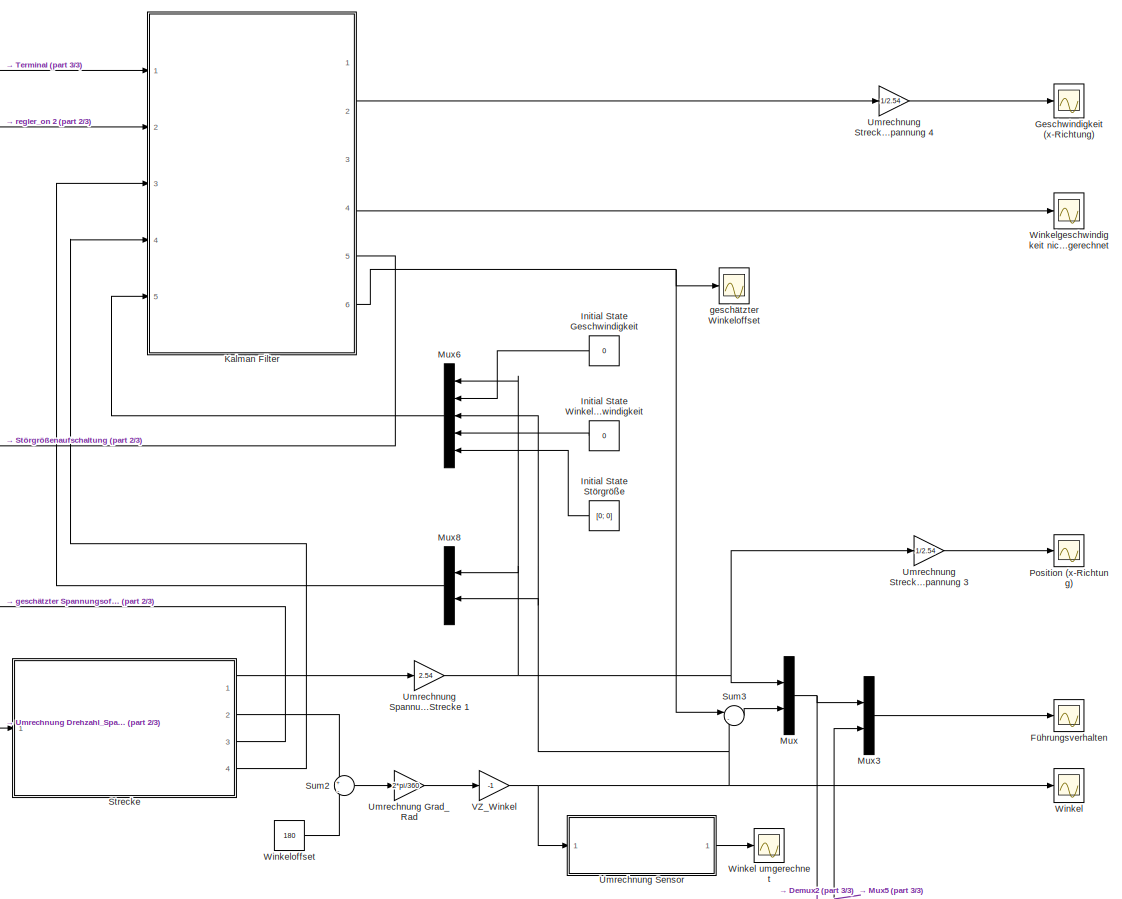
[diagram: root canvas - part 1/3, right side, full height]
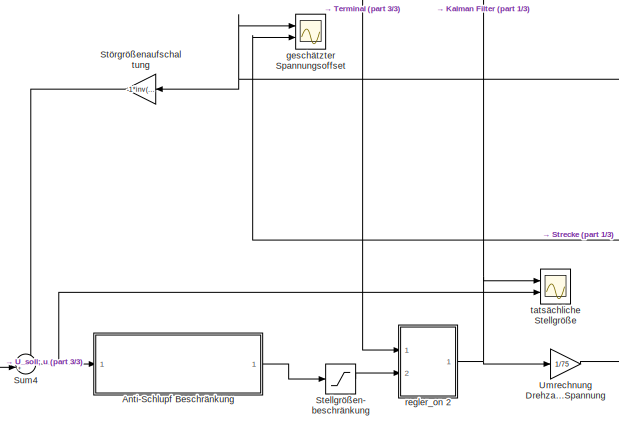
[diagram: root canvas - part 2/3, central region]
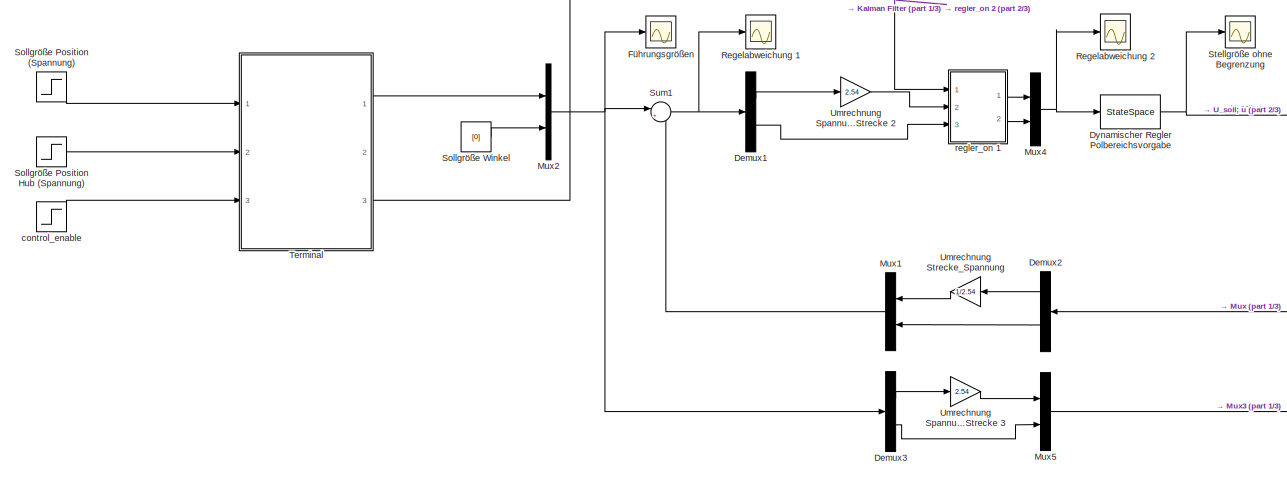
[diagram: root canvas - part 3/3, bottom left region]
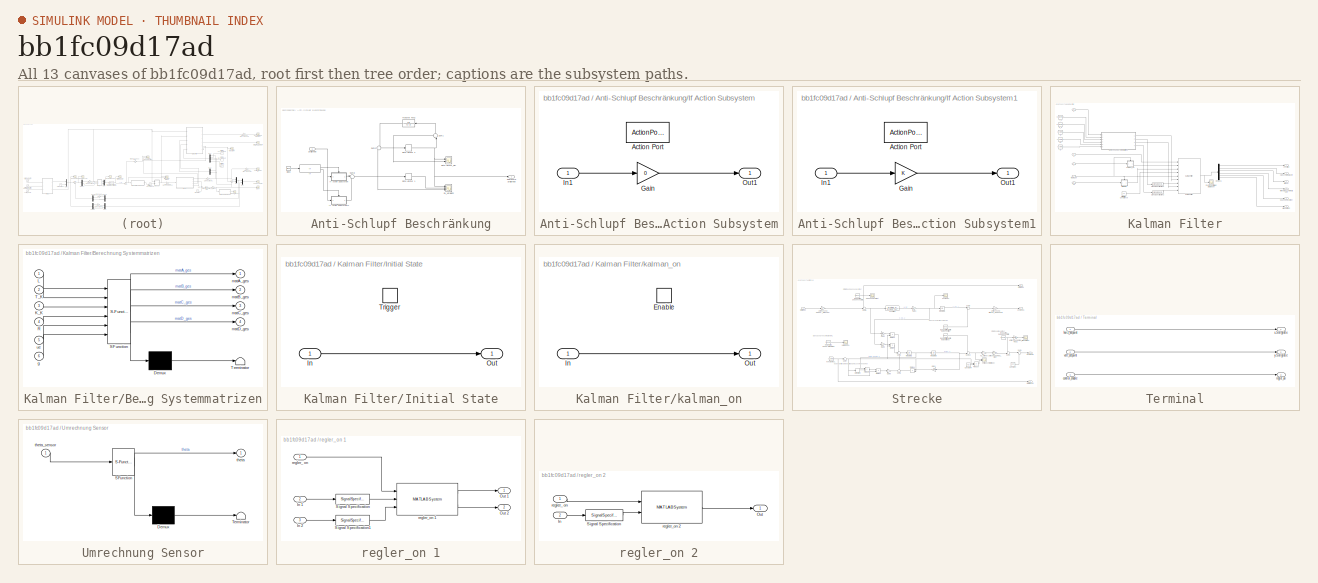
[diagram: thumbnail index - all 13 canvases of the model, root first then tree order]
MODEL slx_bb1fc09d17ad
KIND model
CONFIG AbsTol = auto
CONFIG EnableMultiTasking = off
CONFIG FixedStep = 1e-3
CONFIG MaxStep = auto
CONFIG MinStep = auto
CONFIG RelTol = 1e3
CONFIG SampleTimeConstraint = Unconstrained
CONFIG Solver = VariableStepAuto
CONFIG SolverName = VariableStepAuto
CONFIG StartTime = 0.0
CONFIG StopTime = 30.0
BLOCK [SubSystem] Anti-Schlupf Beschränkung
  Ports = [1, 1]
  RequestExecContextInheritance = off
  Variant = off
BLOCK [Clock] Anti-Schlupf Beschränkung/Clock
BLOCK [If] Anti-Schlupf Beschränkung/If
  IfExpression = u1 < 0.01
  Ports = [1, 2]
BLOCK [SubSystem] Anti-Schlupf Beschränkung/If Action Subsystem
  Ports = [1, 1, 0, 0, 0, 0, 0, 1]
  RequestExecContextInheritance = off
  TreatAsAtomicUnit = on
  Variant = off
BLOCK [ActionPort] Anti-Schlupf Beschränkung/If Action Subsystem/Action Port
  ActionType = then
BLOCK [Gain] Anti-Schlupf Beschränkung/If Action Subsystem/Gain
  Gain = 0
  OutDataTypeStr = Inherit: Inherit via internal rule
  ParamDataTypeStr = Inherit: Inherit via internal rule
  SaturateOnIntegerOverflow = off
BLOCK [Inport] Anti-Schlupf Beschränkung/If Action Subsystem/In1
  IconDisplay = Port number
BLOCK [Outport] Anti-Schlupf Beschränkung/If Action Subsystem/Out1
  IconDisplay = Port number
BLOCK [SubSystem] Anti-Schlupf Beschränkung/If Action Subsystem1
  Ports = [1, 1, 0, 0, 0, 0, 0, 1]
  RequestExecContextInheritance = off
  TreatAsAtomicUnit = on
  Variant = off
BLOCK [ActionPort] Anti-Schlupf Beschränkung/If Action Subsystem1/Action Port
  ActionType = else
BLOCK [Gain] Anti-Schlupf Beschränkung/If Action Subsystem1/Gain
  OutDataTypeStr = Inherit: Inherit via internal rule
  ParamDataTypeStr = Inherit: Inherit via internal rule
  SaturateOnIntegerOverflow = off
BLOCK [Inport] Anti-Schlupf Beschränkung/If Action Subsystem1/In1
  IconDisplay = Port number
BLOCK [Outport] Anti-Schlupf Beschränkung/If Action Subsystem1/Out1
  IconDisplay = Port number
BLOCK [Scope] Anti-Schlupf Beschränkung/RL_Vergleich
  NumInputPorts = 3
  Ports = [3]
  ScopeSpecificationString = Simulink.scopes.TimeScopeBlockCfg('CurrentConfiguration', extmgr.ConfigurationSet(extmgr.Configuration('Core','General UI',true),extmgr.Configuration('Core','Source UI',true),extmgr.Configuration('Sources','WiredSimulink',true,'DataLoggingVariableName','ScopeData2'),extmgr.Configuration('Visuals','Time Domain',true,'SerializedDisplays',{struct('MinYLimReal','-510.99726','MaxYLimReal','97.01303','Y...<+1490ch>
BLOCK [RateLimiter] Anti-Schlupf Beschränkung/Rate Limiter 1
  FallingSlewLimit = -9.57
  RisingSlewLimit = 9.57
  SampleTimeMode = inherited
BLOCK [RateLimiter] Anti-Schlupf Beschränkung/Rate Limiter 2
  FallingSlewLimit = -9.57
  RisingSlewLimit = 9.57
  SampleTimeMode = inherited
BLOCK [Scope] Anti-Schlupf Beschränkung/Rate Limiter_diff
  NumInputPorts = 2
  Ports = [2]
  ScopeSpecificationString = Simulink.scopes.TimeScopeBlockCfg('CurrentConfiguration', extmgr.ConfigurationSet(extmgr.Configuration('Core','General UI',true),extmgr.Configuration('Core','Source UI',true),extmgr.Configuration('Sources','WiredSimulink',true,'DataLoggingVariableName','ScopeData1'),extmgr.Configuration('Visuals','Time Domain',true,'SerializedDisplays',{struct('MinYLimReal','-24.99839','MaxYLimReal','29.44327','YL...<+1434ch>
BLOCK [Inport] Anti-Schlupf Beschränkung/Stellgröße
  IconDisplay = Port number
BLOCK [Sum] Anti-Schlupf Beschränkung/Sum1
  IconShape = round
  InputSameDT = off
  Inputs = -+|
  OutDataTypeStr = Inherit: Inherit via internal rule
  Ports = [2, 1]
  SaturateOnIntegerOverflow = off
BLOCK [Sum] Anti-Schlupf Beschränkung/Sum2
  IconShape = round
  InputSameDT = off
  Inputs = +|+
  OutDataTypeStr = Inherit: Inherit via internal rule
  Ports = [2, 1]
  SaturateOnIntegerOverflow = off
BLOCK [Sum] Anti-Schlupf Beschränkung/Sum8
  IconShape = round
  InputSameDT = off
  Inputs = |++
  OutDataTypeStr = Inherit: Inherit via internal rule
  Ports = [2, 1]
  SaturateOnIntegerOverflow = off
BLOCK [TransferFcn] Anti-Schlupf Beschränkung/Transfer Fcn2
  Denominator = [2 1]
  Numerator = [2]
BLOCK [Outport] Anti-Schlupf Beschränkung/begrenzte Stellgröße
  IconDisplay = Port number
BLOCK [Demux] Demux1
  DisplayOption = bar
  Outputs = 2
  Ports = [1, 2]
BLOCK [Demux] Demux2
  DisplayOption = bar
  Outputs = 2
  Ports = [1, 2]
BLOCK [Demux] Demux3
  DisplayOption = bar
  Outputs = 2
  Ports = [1, 2]
BLOCK [StateSpace] Dynamischer Regler Polbereichsvorgabe
  A = A_D
  B = -B_D
  C = -C_D
  D = D_D
  Ports = [1, 1]
  X0 = 0
BLOCK [Scope] Führungsgrößen
  NumInputPorts = 1
  Ports = [1]
  ScopeSpecificationString = Simulink.scopes.TimeScopeBlockCfg('CurrentConfiguration', extmgr.ConfigurationSet(extmgr.Configuration('Core','General UI',true),extmgr.Configuration('Core','Source UI',true),extmgr.Configuration('Sources','WiredSimulink',true,'DataLoggingVariableName','ScopeData7'),extmgr.Configuration('Visuals','Time Domain',true,'SerializedDisplays',{struct('MinYLimReal','-0.125','MaxYLimReal','1.125','YLabelRe...<+1407ch>
BLOCK [Scope] Führungsverhalten
  NumInputPorts = 1
  Ports = [1]
  ScopeSpecificationString = Simulink.scopes.TimeScopeBlockCfg('CurrentConfiguration', extmgr.ConfigurationSet(extmgr.Configuration('Core','General UI',true),extmgr.Configuration('Core','Source UI',true),extmgr.Configuration('Sources','WiredSimulink',true,'DataLoggingVariableName','ScopeData1'),extmgr.Configuration('Visuals','Time Domain',true,'SerializedDisplays',{struct('MinYLimReal','-0.63895','MaxYLimReal','4.4975','YLabe...<+1507ch>
BLOCK [Scope] Geschwindigkeit (x-Richtung)
  NumInputPorts = 1
  Ports = [1]
  ScopeSpecificationString = Simulink.scopes.TimeScopeBlockCfg('CurrentConfiguration', extmgr.ConfigurationSet(extmgr.Configuration('Core','General UI',true),extmgr.Configuration('Core','Source UI',true),extmgr.Configuration('Sources','WiredSimulink',true,'DataLoggingVariableName','ScopeData1'),extmgr.Configuration('Visuals','Time Domain',true,'SerializedDisplays',{struct('MinYLimReal','-0.29677','MaxYLimReal','1.17208','YLab...<+1461ch>
BLOCK [Constant] Initial State Geschwindigkeit
  Value = 0
  VectorParams1D = off
BLOCK [Constant] Initial State Störgröße
  Value = [0; 0]
  VectorParams1D = off
BLOCK [Constant] Initial State Winkelgeschwindigkeit
  Value = 0
  VectorParams1D = off
BLOCK [SubSystem] Kalman Filter
  Ports = [5, 6]
  RequestExecContextInheritance = off
  Variant = off
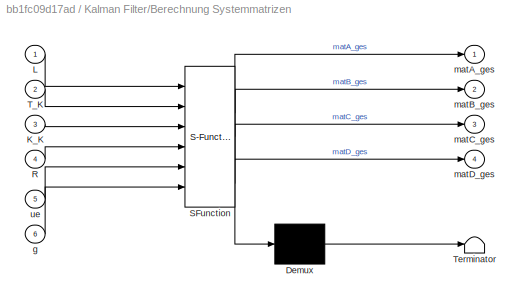
BLOCK [SubSystem] Kalman Filter/Berechnung Systemmatrizen
  ErrorFcn = Stateflow.Translate.translate
  PermitHierarchicalResolution = ExplicitOnly
  Ports = [6, 4]
  RequestExecContextInheritance = off
  SFBlockType = MATLAB Function
  TreatAsAtomicUnit = on
  Variant = off
BLOCK [Demux] Kalman Filter/Berechnung Systemmatrizen/ Demux 
  Outputs = 1
  Ports = [1, 1]
BLOCK [S-Function] Kalman Filter/Berechnung Systemmatrizen/ SFunction 
  EnableBusSupport = on
  FunctionName = sf_sfun
  PortCounts = [6 5]
  Ports = [6, 5]
  SFcnIsStateOwnerBlock = off
  SFunctionDeploymentMode = off
  Tag = Stateflow S-Function sim_polbereichsvorgabe 3
BLOCK [Terminator] Kalman Filter/Berechnung Systemmatrizen/ Terminator 
BLOCK [Inport] Kalman Filter/Berechnung Systemmatrizen/K_K
  IconDisplay = Port number
  Port = 3
BLOCK [Inport] Kalman Filter/Berechnung Systemmatrizen/L
  IconDisplay = Port number
BLOCK [Inport] Kalman Filter/Berechnung Systemmatrizen/R
  IconDisplay = Port number
  Port = 4
BLOCK [Inport] Kalman Filter/Berechnung Systemmatrizen/T_K
  IconDisplay = Port number
  Port = 2
BLOCK [Inport] Kalman Filter/Berechnung Systemmatrizen/g
  IconDisplay = Port number
  Port = 6
BLOCK [Outport] Kalman Filter/Berechnung Systemmatrizen/matA_ges
  IconDisplay = Port number
BLOCK [Outport] Kalman Filter/Berechnung Systemmatrizen/matB_ges
  IconDisplay = Port number
  Port = 2
BLOCK [Outport] Kalman Filter/Berechnung Systemmatrizen/matC_ges
  IconDisplay = Port number
  Port = 3
BLOCK [Outport] Kalman Filter/Berechnung Systemmatrizen/matD_ges
  IconDisplay = Port number
  Port = 4
BLOCK [Inport] Kalman Filter/Berechnung Systemmatrizen/ue
  IconDisplay = Port number
  Port = 5
BLOCK [Demux] Kalman Filter/Demux6
  DisplayOption = bar
  Outputs = 6
  Ports = [1, 6]
BLOCK [Constant] Kalman Filter/Initial Error Covariance
  Value = 10
BLOCK [SubSystem] Kalman Filter/Initial State
  Ports = [1, 1, 0, 1]
  RequestExecContextInheritance = off
  TreatAsAtomicUnit = on
  Variant = off
BLOCK [Inport] Kalman Filter/Initial State/In
  IconDisplay = Port number
BLOCK [Outport] Kalman Filter/Initial State/Out
  IconDisplay = Port number
BLOCK [TriggerPort] Kalman Filter/Initial State/Trigger
  Ports = []
  StatesWhenEnabling = held
  VariantControl = Variant
BLOCK [Constant] Kalman Filter/K_K
  Value = system.K_K
BLOCK [Reference] Kalman Filter/Kalman Filter  REF=ctrlSharedLib/Kalman Filter
  Ports = [9, 1]
  SourceBlock = ctrlSharedLib/Kalman Filter
  SourceType = ctrlKalmanFilter
BLOCK [Inport] Kalman Filter/L
  IconDisplay = Port number
  Port = 4
BLOCK [Constant] Kalman Filter/R
  Value = system.R
BLOCK [SignalSpecification] Kalman Filter/Signal Specification 1
  Dimensions = [6 1]
BLOCK [SignalSpecification] Kalman Filter/Signal Specification 2
  Dimensions = [2 1]
BLOCK [Outport] Kalman Filter/Spannungsoffset
  IconDisplay = Port number
  Port = 5
BLOCK [Constant] Kalman Filter/T_K
  Value = system.T_K
BLOCK [Outport] Kalman Filter/Winkel
  IconDisplay = Port number
  Port = 3
BLOCK [Outport] Kalman Filter/Winkelgeschwindigkeit
  IconDisplay = Port number
  Port = 4
BLOCK [Outport] Kalman Filter/Winkeloffset
  IconDisplay = Port number
  Port = 6
BLOCK [Scope] Kalman Filter/Zustände mit allen Störgrößen
  NumInputPorts = 1
  Ports = [1]
  ScopeSpecificationString = Simulink.scopes.TimeScopeBlockCfg('CurrentConfiguration', extmgr.ConfigurationSet(extmgr.Configuration('Core','General UI',true),extmgr.Configuration('Core','Source UI',true),extmgr.Configuration('Sources','WiredSimulink',true,'DataLoggingVariableName','ScopeData1'),extmgr.Configuration('Visuals','Time Domain',true,'SerializedDisplays',{struct('MinYLimReal','-0.84313','MaxYLimReal','3.02828','YLab...<+1537ch>
BLOCK [Constant] Kalman Filter/g
  Value = system.g
BLOCK [SubSystem] Kalman Filter/kalman_on
  Ports = [1, 1, 1]
  RequestExecContextInheritance = off
  TreatAsAtomicUnit = on
  Variant = off
BLOCK [EnablePort] Kalman Filter/kalman_on/Enable
  Ports = []
BLOCK [Inport] Kalman Filter/kalman_on/In
  IconDisplay = Port number
BLOCK [Outport] Kalman Filter/kalman_on/Out
  IconDisplay = Port number
BLOCK [Inport] Kalman Filter/regler_an
  IconDisplay = Port number
BLOCK [Inport] Kalman Filter/u
  IconDisplay = Port number
  Port = 2
BLOCK [Constant] Kalman Filter/ue
  Value = system.ue
BLOCK [Outport] Kalman Filter/x-Geschwindigkeit
  IconDisplay = Port number
  Port = 2
BLOCK [Outport] Kalman Filter/x-Position
  IconDisplay = Port number
BLOCK [Inport] Kalman Filter/x0
  IconDisplay = Port number
  Port = 5
BLOCK [Inport] Kalman Filter/y
  IconDisplay = Port number
  Port = 3
BLOCK [Mux] Mux
  DisplayOption = bar
  Inputs = 2
  Ports = [2, 1]
BLOCK [Mux] Mux1
  DisplayOption = bar
  Inputs = 2
  Ports = [2, 1]
BLOCK [Mux] Mux2
  DisplayOption = bar
  Inputs = 2
  Ports = [2, 1]
BLOCK [Mux] Mux3
  DisplayOption = bar
  Inputs = 2
  Ports = [2, 1]
BLOCK [Mux] Mux4
  DisplayOption = bar
  Inputs = 2
  Ports = [2, 1]
BLOCK [Mux] Mux5
  DisplayOption = bar
  Inputs = 2
  Ports = [2, 1]
BLOCK [Mux] Mux6
  DisplayOption = bar
  Inputs = 5
  Ports = [5, 1]
BLOCK [Mux] Mux8
  DisplayOption = bar
  Inputs = 2
  Ports = [2, 1]
BLOCK [Scope] Position (x-Richtung)
  NumInputPorts = 1
  Ports = [1]
  ScopeSpecificationString = Simulink.scopes.TimeScopeBlockCfg('CurrentConfiguration', extmgr.ConfigurationSet(extmgr.Configuration('Core','General UI',true),extmgr.Configuration('Core','Source UI',true),extmgr.Configuration('Sources','WiredSimulink',true,'DataLoggingVariableName','ScopeData3'),extmgr.Configuration('Visuals','Time Domain',true,'SerializedDisplays',{struct('MinYLimReal','-0.13698','MaxYLimReal','1.17403','YLab...<+1461ch>
BLOCK [Scope] Regelabweichung 1
  NumInputPorts = 1
  Ports = [1]
  ScopeSpecificationString = Simulink.scopes.TimeScopeBlockCfg('CurrentConfiguration', extmgr.ConfigurationSet(extmgr.Configuration('Core','General UI',true),extmgr.Configuration('Core','Source UI',true),extmgr.Configuration('Sources','WiredSimulink',true,'DataLoggingVariableName','ScopeData3'),extmgr.Configuration('Visuals','Time Domain',true,'SerializedDisplays',{struct('MinYLimReal','-0.09748','MaxYLimReal','0.56989','YLab...<+1435ch>
BLOCK [Scope] Regelabweichung 2
  NumInputPorts = 1
  Ports = [1]
  ScopeSpecificationString = Simulink.scopes.TimeScopeBlockCfg('CurrentConfiguration', extmgr.ConfigurationSet(extmgr.Configuration('Core','General UI',true),extmgr.Configuration('Core','Source UI',true),extmgr.Configuration('Sources','WiredSimulink',true,'DataLoggingVariableName','ScopeData6'),extmgr.Configuration('Visuals','Time Domain',true,'SerializedDisplays',{struct('MinYLimReal','-0.49466','MaxYLimReal','2.89378','YLab...<+1449ch>
BLOCK [Step] Sollgröße Position (Spannung)
  SampleTime = 0
  Time = 2
BLOCK [Step] Sollgröße Position Hub (Spannung)
  After = 0.5
  SampleTime = 0
  Time = 2
BLOCK [Constant] Sollgröße Winkel
  Value = [0]
  VectorParams1D = off
BLOCK [Scope] Stellgröße ohne Begrenzung
  NumInputPorts = 1
  Ports = [1]
  ScopeSpecificationString = Simulink.scopes.TimeScopeBlockCfg('CurrentConfiguration', extmgr.ConfigurationSet(extmgr.Configuration('Core','General UI',true),extmgr.Configuration('Core','Source UI',true),extmgr.Configuration('Sources','WiredSimulink',true,'DataLoggingVariableName','ScopeData5'),extmgr.Configuration('Visuals','Time Domain',true,'SerializedDisplays',{struct('MinYLimReal','-310.10219','MaxYLimReal','60.85818','Y...<+1453ch>
BLOCK [Saturate] Stellgrößen- beschränkung
  InputPortMap = u0
  LowerLimit = -75
  Ports = [1, 1]
  UpperLimit = 75
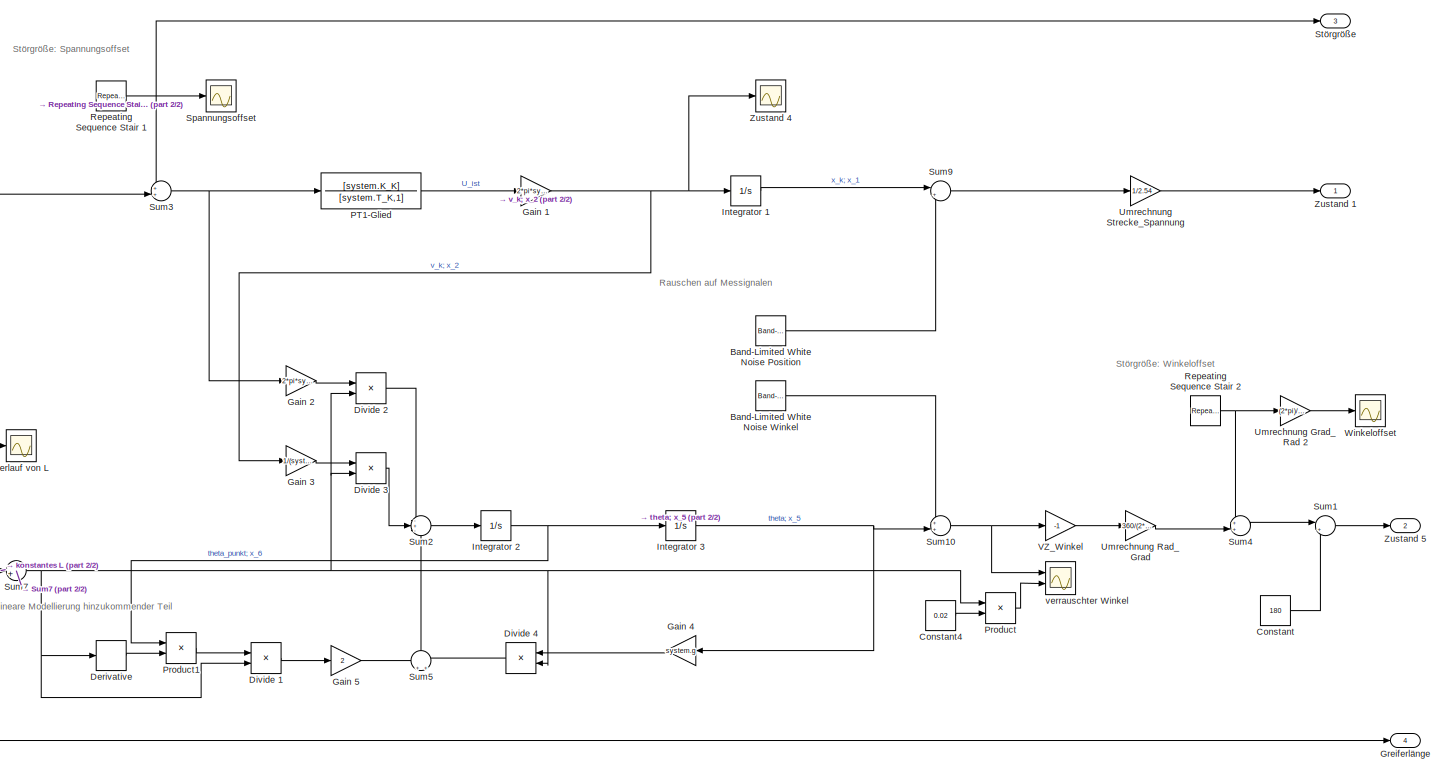
[diagram: Strecke - part 1/2, most of the canvas]
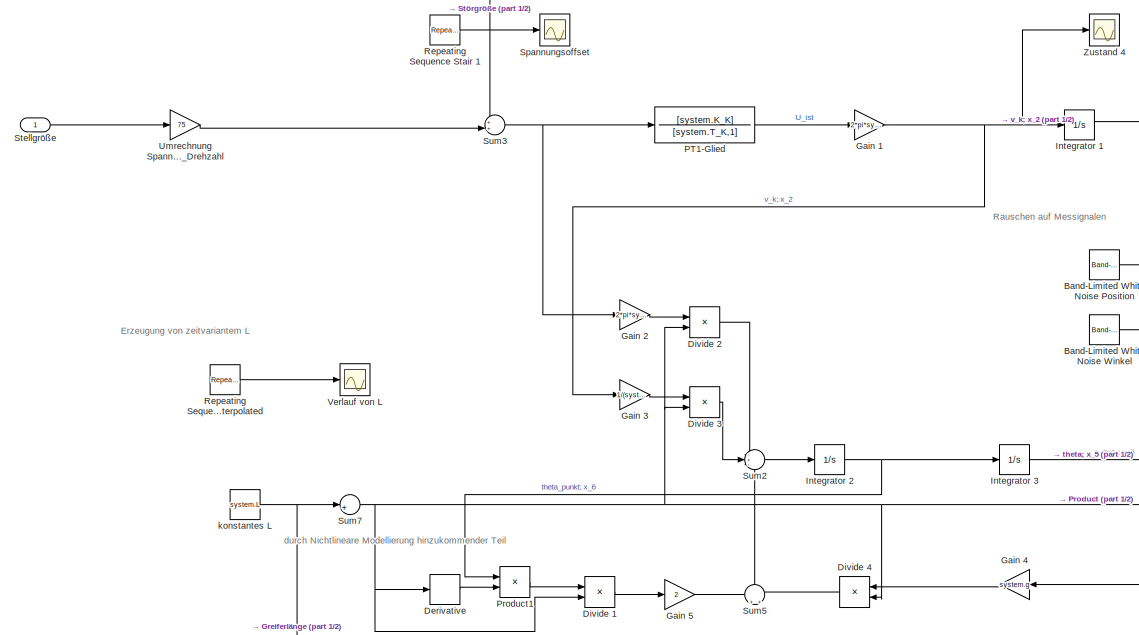
[diagram: Strecke - part 2/2, left side, full height]
BLOCK [SubSystem] Strecke
  Ports = [1, 4]
  RequestExecContextInheritance = off
  Variant = off
BLOCK [Reference] Strecke/Band-Limited White Noise Position  REF=simulink/Sources/Band-Limited
White Noise
  Ports = [0, 1]
  SourceBlock = simulink/Sources/Band-Limited\nWhite Noise
  SourceType = Band-Limited White Noise.
BLOCK [Reference] Strecke/Band-Limited White Noise Winkel  REF=simulink/Sources/Band-Limited
White Noise
  Ports = [0, 1]
  SourceBlock = simulink/Sources/Band-Limited\nWhite Noise
  SourceType = Band-Limited White Noise.
BLOCK [Constant] Strecke/Constant
  Value = 180
BLOCK [Constant] Strecke/Constant4
  Value = 0.02
BLOCK [Derivative] Strecke/Derivative
BLOCK [Product] Strecke/Divide 1
  InputSameDT = off
  Inputs = */
  OutDataTypeStr = Inherit: Inherit via internal rule
  Ports = [2, 1]
  RndMeth = Floor
  SaturateOnIntegerOverflow = off
BLOCK [Product] Strecke/Divide 2
  InputSameDT = off
  Inputs = */
  OutDataTypeStr = Inherit: Inherit via internal rule
  Ports = [2, 1]
  RndMeth = Floor
  SaturateOnIntegerOverflow = off
BLOCK [Product] Strecke/Divide 3
  InputSameDT = off
  Inputs = */
  OutDataTypeStr = Inherit: Inherit via internal rule
  Ports = [2, 1]
  RndMeth = Floor
  SaturateOnIntegerOverflow = off
BLOCK [Product] Strecke/Divide 4
  InputSameDT = off
  Inputs = */
  OutDataTypeStr = Inherit: Inherit via internal rule
  Ports = [2, 1]
  RndMeth = Floor
  SaturateOnIntegerOverflow = off
BLOCK [Gain] Strecke/Gain 1
  Gain = 2*pi*system.R/system.ue
  OutDataTypeStr = Inherit: Inherit via internal rule
  ParamDataTypeStr = Inherit: Inherit via internal rule
  SaturateOnIntegerOverflow = off
BLOCK [Gain] Strecke/Gain 2
  Gain = 2*pi*system.R*system.K_K/(system.ue*system.T_K)
  OutDataTypeStr = Inherit: Inherit via internal rule
  ParamDataTypeStr = Inherit: Inherit via internal rule
  SaturateOnIntegerOverflow = off
BLOCK [Gain] Strecke/Gain 3
  Gain = 1/(system.T_K)
  OutDataTypeStr = Inherit: Inherit via internal rule
  ParamDataTypeStr = Inherit: Inherit via internal rule
  SaturateOnIntegerOverflow = off
BLOCK [Gain] Strecke/Gain 4
  Gain = system.g
  OutDataTypeStr = Inherit: Inherit via internal rule
  ParamDataTypeStr = Inherit: Inherit via internal rule
  SaturateOnIntegerOverflow = off
BLOCK [Gain] Strecke/Gain 5
  Gain = 2
  OutDataTypeStr = Inherit: Inherit via internal rule
  ParamDataTypeStr = Inherit: Inherit via internal rule
  SaturateOnIntegerOverflow = off
BLOCK [Outport] Strecke/Greiferlänge
  IconDisplay = Port number
  Port = 4
BLOCK [Integrator] Strecke/Integrator 1
  Ports = [1, 1]
BLOCK [Integrator] Strecke/Integrator 2
  Ports = [1, 1]
BLOCK [Integrator] Strecke/Integrator 3
  Ports = [1, 1]
BLOCK [TransferFcn] Strecke/PT1-Glied
  Denominator = [system.T_K,1]
  Numerator = [system.K_K]
BLOCK [Product] Strecke/Product
  InputSameDT = off
  OutDataTypeStr = Inherit: Inherit via internal rule
  Ports = [2, 1]
  RndMeth = Floor
  SaturateOnIntegerOverflow = off
BLOCK [Product] Strecke/Product1
  InputSameDT = off
  OutDataTypeStr = Inherit: Inherit via internal rule
  Ports = [2, 1]
  RndMeth = Floor
  SaturateOnIntegerOverflow = off
BLOCK [Reference] Strecke/Repeating Sequence Interpolated  REF=simulink/Sources/Repeating
Sequence
Interpolated
  Ports = [0, 1]
  SourceBlock = simulink/Sources/Repeating\nSequence\nInterpolated
  SourceType = Repeating Sequence Interpolated
BLOCK [Reference] Strecke/Repeating Sequence Stair 1  REF=simulink/Sources/Repeating
Sequence
Stair
  Ports = [0, 1]
  SourceBlock = simulink/Sources/Repeating\nSequence\nStair
  SourceType = Repeating Sequence Stair
BLOCK [Reference] Strecke/Repeating Sequence Stair 2  REF=simulink/Sources/Repeating
Sequence
Stair
  Ports = [0, 1]
  SourceBlock = simulink/Sources/Repeating\nSequence\nStair
  SourceType = Repeating Sequence Stair
BLOCK [Scope] Strecke/Spannungsoffset
  NumInputPorts = 1
  Ports = [1]
  ScopeSpecificationString = Simulink.scopes.TimeScopeBlockCfg('CurrentConfiguration', extmgr.ConfigurationSet(extmgr.Configuration('Core','General UI',true),extmgr.Configuration('Core','Source UI',true),extmgr.Configuration('Sources','WiredSimulink',true,'DataLoggingVariableName','ScopeData1','DataLoggingLimitDataPoints',true,'DataLoggingSaveFormat','Array','DataLoggingDecimation','1','DataLoggingDecimateData',true),extmgr.C...<+1482ch>
BLOCK [Inport] Strecke/Stellgröße
  IconDisplay = Port number
BLOCK [Outport] Strecke/Störgröße
  IconDisplay = Port number
  Port = 3
BLOCK [Sum] Strecke/Sum1
  IconShape = round
  InputSameDT = off
  Inputs = |++
  OutDataTypeStr = Inherit: Inherit via internal rule
  Ports = [2, 1]
  SaturateOnIntegerOverflow = off
BLOCK [Sum] Strecke/Sum10
  IconShape = round
  InputSameDT = off
  Inputs = ++|
  OutDataTypeStr = Inherit: Inherit via internal rule
  Ports = [2, 1]
  SaturateOnIntegerOverflow = off
BLOCK [Sum] Strecke/Sum2
  IconShape = round
  InputSameDT = off
  Inputs = -+-
  OutDataTypeStr = Inherit: Inherit via internal rule
  Ports = [3, 1]
  SaturateOnIntegerOverflow = off
BLOCK [Sum] Strecke/Sum3
  IconShape = round
  InputSameDT = off
  Inputs = ++|
  OutDataTypeStr = Inherit: Inherit via internal rule
  Ports = [2, 1]
  SaturateOnIntegerOverflow = off
BLOCK [Sum] Strecke/Sum4
  IconShape = round
  InputSameDT = off
  Inputs = ++|
  OutDataTypeStr = Inherit: Inherit via internal rule
  Ports = [2, 1]
  SaturateOnIntegerOverflow = off
BLOCK [Sum] Strecke/Sum5
  IconShape = round
  InputSameDT = off
  Inputs = +|+
  OutDataTypeStr = Inherit: Inherit via internal rule
  Ports = [2, 1]
  SaturateOnIntegerOverflow = off
BLOCK [Sum] Strecke/Sum7
  IconShape = round
  InputSameDT = off
  Inputs = |+|
  OutDataTypeStr = Inherit: Inherit via internal rule
  Ports = [1, 1]
  SaturateOnIntegerOverflow = off
BLOCK [Sum] Strecke/Sum9
  IconShape = round
  InputSameDT = off
  Inputs = |++
  OutDataTypeStr = Inherit: Inherit via internal rule
  Ports = [2, 1]
  SaturateOnIntegerOverflow = off
BLOCK [Gain] Strecke/Umrechnung Grad_Rad 2
  Gain = (2*pi)/360
  OutDataTypeStr = Inherit: Inherit via internal rule
  ParamDataTypeStr = Inherit: Inherit via internal rule
  SaturateOnIntegerOverflow = off
BLOCK [Gain] Strecke/Umrechnung Rad_Grad
  Gain = 360/(2*pi)
  OutDataTypeStr = Inherit: Inherit via internal rule
  ParamDataTypeStr = Inherit: Inherit via internal rule
  SaturateOnIntegerOverflow = off
BLOCK [Gain] Strecke/Umrechnung Spannung_Drehzahl
  Gain = 75
  OutDataTypeStr = Inherit: Inherit via internal rule
  ParamDataTypeStr = Inherit: Inherit via internal rule
  SaturateOnIntegerOverflow = off
BLOCK [Gain] Strecke/Umrechnung Strecke_Spannung
  Gain = 1/2.54
  OutDataTypeStr = Inherit: Inherit via internal rule
  ParamDataTypeStr = Inherit: Inherit via internal rule
  SaturateOnIntegerOverflow = off
BLOCK [Gain] Strecke/VZ_Winkel
  Gain = -1
  OutDataTypeStr = Inherit: Inherit via internal rule
  ParamDataTypeStr = Inherit: Inherit via internal rule
  SaturateOnIntegerOverflow = off
BLOCK [Scope] Strecke/Verlauf von L
  NumInputPorts = 1
  Ports = [1]
  ScopeSpecificationString = Simulink.scopes.TimeScopeBlockCfg('CurrentConfiguration', extmgr.ConfigurationSet(extmgr.Configuration('Core','General UI',true),extmgr.Configuration('Core','Source UI',true),extmgr.Configuration('Sources','WiredSimulink',true,'DataLoggingVariableName','ScopeData2','DataLoggingSaveFormat','Array','DataLoggingDecimation','1','DataLoggingDecimateData',true),extmgr.Configuration('Visuals','Time Domai...<+1525ch>
BLOCK [Scope] Strecke/Winkeloffset
  NumInputPorts = 1
  Ports = [1]
  ScopeSpecificationString = Simulink.scopes.TimeScopeBlockCfg('CurrentConfiguration', extmgr.ConfigurationSet(extmgr.Configuration('Core','General UI',true),extmgr.Configuration('Core','Source UI',true),extmgr.Configuration('Sources','WiredSimulink',true,'DataLoggingVariableName','ScopeData1'),extmgr.Configuration('Visuals','Time Domain',true,'SerializedDisplays',{struct('MinYLimReal','-0.00873','MaxYLimReal','0.07854','YLab...<+1416ch>
BLOCK [Outport] Strecke/Zustand 1
  IconDisplay = Port number
BLOCK [Scope] Strecke/Zustand 4
  NumInputPorts = 1
  Ports = [1]
  ScopeSpecificationString = Simulink.scopes.TimeScopeBlockCfg('CurrentConfiguration', extmgr.ConfigurationSet(extmgr.Configuration('Core','General UI',true),extmgr.Configuration('Core','Source UI',true),extmgr.Configuration('Sources','WiredSimulink',true,'DataLoggingVariableName','ScopeData4','DataLoggingSaveFormat','Array','DataLoggingDecimation','1','DataLoggingDecimateData',true),extmgr.Configuration('Visuals','Time Domai...<+1506ch>
BLOCK [Outport] Strecke/Zustand 5
  IconDisplay = Port number
  Port = 2
BLOCK [Constant] Strecke/konstantes L
  Value = system.L
BLOCK [Scope] Strecke/verrauschter Winkel
  NumInputPorts = 2
  Ports = [2]
  ScopeSpecificationString = Simulink.scopes.TimeScopeBlockCfg('CurrentConfiguration', extmgr.ConfigurationSet(extmgr.Configuration('Core','General UI',true),extmgr.Configuration('Core','Source UI',true),extmgr.Configuration('Sources','WiredSimulink',true,'DataLoggingVariableName','ScopeData5','DataLoggingLimitDataPoints',true),extmgr.Configuration('Visuals','Time Domain',true,'SerializedDisplays',{struct('MinYLimReal','-0.00...<+1444ch>
BLOCK [Gain] Störgrößenaufschaltung
  Gain = -1*inv(matB'*matB)*matB'*matE
  Multiplication = Matrix(K*u)
  OutDataTypeStr = Inherit: Inherit via internal rule
  ParamDataTypeStr = Inherit: Inherit via internal rule
  SaturateOnIntegerOverflow = off
BLOCK [Sum] Sum1
  IconShape = round
  InputSameDT = off
  Inputs = |+-
  OutDataTypeStr = Inherit: Inherit via internal rule
  Ports = [2, 1]
  SaturateOnIntegerOverflow = off
BLOCK [Sum] Sum2
  IconShape = round
  InputSameDT = off
  Inputs = +|-
  OutDataTypeStr = Inherit: Inherit via internal rule
  Ports = [2, 1]
  SaturateOnIntegerOverflow = off
BLOCK [Sum] Sum3
  IconShape = round
  InputSameDT = off
  Inputs = |-+
  OutDataTypeStr = Inherit: Inherit via internal rule
  Ports = [2, 1]
  SaturateOnIntegerOverflow = off
BLOCK [Sum] Sum4
  IconShape = round
  InputSameDT = off
  Inputs = ++|
  OutDataTypeStr = Inherit: Inherit via internal rule
  Ports = [2, 1]
  SaturateOnIntegerOverflow = off
BLOCK [SubSystem] Terminal
  Ports = [3, 3]
  RequestExecContextInheritance = off
  Variant = off
BLOCK [Inport] Terminal/control_enable
  IconDisplay = Port number
  Port = 3
BLOCK [Inport] Terminal/horiz_setpoint
  IconDisplay = Port number
BLOCK [Outport] Terminal/regler_an
  IconDisplay = Port number
  Port = 3
BLOCK [Inport] Terminal/vert_setpoint
  IconDisplay = Port number
  Port = 2
BLOCK [Outport] Terminal/x-Sollgröße
  IconDisplay = Port number
BLOCK [Outport] Terminal/y-Sollgröße
  IconDisplay = Port number
  Port = 2
BLOCK [Gain] Umrechnung Drehzahl_Spannung
  Gain = 1/75
  OutDataTypeStr = Inherit: Inherit via internal rule
  ParamDataTypeStr = Inherit: Inherit via internal rule
  SaturateOnIntegerOverflow = off
BLOCK [Gain] Umrechnung Grad_Rad
  Gain = 2*pi/360
  OutDataTypeStr = Inherit: Inherit via internal rule
  ParamDataTypeStr = Inherit: Inherit via internal rule
  SaturateOnIntegerOverflow = off
BLOCK [SubSystem] Umrechnung Sensor
  ErrorFcn = Stateflow.Translate.translate
  PermitHierarchicalResolution = ExplicitOnly
  Ports = [1, 1]
  RequestExecContextInheritance = off
  SFBlockType = MATLAB Function
  TreatAsAtomicUnit = on
  Variant = off
BLOCK [Demux] Umrechnung Sensor/ Demux 
  Outputs = 1
  Ports = [1, 1]
BLOCK [S-Function] Umrechnung Sensor/ SFunction 
  EnableBusSupport = on
  FunctionName = sf_sfun
  PortCounts = [1 2]
  Ports = [1, 2]
  SFcnIsStateOwnerBlock = off
  SFunctionDeploymentMode = off
  Tag = Stateflow S-Function sim_polbereichsvorgabe 2
BLOCK [Terminator] Umrechnung Sensor/ Terminator 
BLOCK [Outport] Umrechnung Sensor/theta
  IconDisplay = Port number
BLOCK [Inport] Umrechnung Sensor/theta_sensor
  IconDisplay = Port number
BLOCK [Gain] Umrechnung Spannung_Strecke 1
  Gain = 2.54
  OutDataTypeStr = Inherit: Inherit via internal rule
  ParamDataTypeStr = Inherit: Inherit via internal rule
  SaturateOnIntegerOverflow = off
BLOCK [Gain] Umrechnung Spannung_Strecke 2
  Gain = 2.54
  OutDataTypeStr = Inherit: Inherit via internal rule
  ParamDataTypeStr = Inherit: Inherit via internal rule
  SaturateOnIntegerOverflow = off
BLOCK [Gain] Umrechnung Spannung_Strecke 3
  Gain = 2.54
  OutDataTypeStr = Inherit: Inherit via internal rule
  ParamDataTypeStr = Inherit: Inherit via internal rule
  SaturateOnIntegerOverflow = off
BLOCK [Gain] Umrechnung Strecke_Spannung
  Gain = 1/2.54
  OutDataTypeStr = Inherit: Inherit via internal rule
  ParamDataTypeStr = Inherit: Inherit via internal rule
  SaturateOnIntegerOverflow = off
BLOCK [Gain] Umrechnung Strecke_Spannung 3
  Gain = 1/2.54
  OutDataTypeStr = Inherit: Inherit via internal rule
  ParamDataTypeStr = Inherit: Inherit via internal rule
  SaturateOnIntegerOverflow = off
BLOCK [Gain] Umrechnung Strecke_Spannung 4
  Gain = 1/2.54
  OutDataTypeStr = Inherit: Inherit via internal rule
  ParamDataTypeStr = Inherit: Inherit via internal rule
  SaturateOnIntegerOverflow = off
BLOCK [Gain] VZ_Winkel
  Gain = -1
  OutDataTypeStr = Inherit: Inherit via internal rule
  ParamDataTypeStr = Inherit: Inherit via internal rule
  SaturateOnIntegerOverflow = off
BLOCK [Scope] Winkel
  NumInputPorts = 1
  Ports = [1]
  ScopeSpecificationString = Simulink.scopes.TimeScopeBlockCfg('CurrentConfiguration', extmgr.ConfigurationSet(extmgr.Configuration('Core','General UI',true),extmgr.Configuration('Core','Source UI',true),extmgr.Configuration('Sources','WiredSimulink',true,'DataLoggingVariableName','ScopeData8'),extmgr.Configuration('Visuals','Time Domain',true,'SerializedDisplays',{struct('MinYLimReal','-0.19031','MaxYLimReal','0.14557','YLab...<+1441ch>
BLOCK [Scope] Winkel umgerechnet
  NumInputPorts = 1
  Ports = [1]
  ScopeSpecificationString = Simulink.scopes.TimeScopeBlockCfg('CurrentConfiguration', extmgr.ConfigurationSet(extmgr.Configuration('Core','General UI',true),extmgr.Configuration('Core','Source UI',true),extmgr.Configuration('Sources','WiredSimulink',true,'DataLoggingVariableName','ScopeData9'),extmgr.Configuration('Visuals','Time Domain',true,'SerializedDisplays',{struct('MinYLimReal','-0.39144','MaxYLimReal','0.34735','YLab...<+1412ch>
BLOCK [Scope] Winkelgeschwindigkeit nicht umgerechnet
  NumInputPorts = 1
  Ports = [1]
  ScopeSpecificationString = Simulink.scopes.TimeScopeBlockCfg('CurrentConfiguration', extmgr.ConfigurationSet(extmgr.Configuration('Core','General UI',true),extmgr.Configuration('Core','Source UI',true),extmgr.Configuration('Sources','WiredSimulink',true,'DataLoggingVariableName','ScopeData2'),extmgr.Configuration('Visuals','Time Domain',true,'SerializedDisplays',{struct('MinYLimReal','-0.5802','MaxYLimReal','0.6157','YLabel...<+1441ch>
BLOCK [Constant] Winkeloffset
  Value = 180
BLOCK [Step] control_enable
  SampleTime = 0
  Time = 2
BLOCK [Scope] geschätzter Spannungsoffset
  NumInputPorts = 2
  Ports = [2]
  ScopeSpecificationString = Simulink.scopes.TimeScopeBlockCfg('CurrentConfiguration', extmgr.ConfigurationSet(extmgr.Configuration('Core','General UI',true),extmgr.Configuration('Core','Source UI',true),extmgr.Configuration('Sources','WiredSimulink',true,'DataLoggingVariableName','ScopeData3'),extmgr.Configuration('Visuals','Time Domain',true,'SerializedDisplays',{struct('MinYLimReal','-0.03685','MaxYLimReal','0.1272','YLabe...<+1455ch>
BLOCK [Scope] geschätzter Winkeloffset
  NumInputPorts = 1
  Ports = [1]
  ScopeSpecificationString = Simulink.scopes.TimeScopeBlockCfg('CurrentConfiguration', extmgr.ConfigurationSet(extmgr.Configuration('Core','General UI',true),extmgr.Configuration('Core','Source UI',true),extmgr.Configuration('Sources','WiredSimulink',true,'DataLoggingVariableName','ScopeData1'),extmgr.Configuration('Visuals','Time Domain',true,'SerializedDisplays',{struct('MinYLimReal','-0.07887','MaxYLimReal','0.00876','YLab...<+1453ch>
BLOCK [SubSystem] regler_on 1
  Ports = [3, 2]
  RequestExecContextInheritance = off
  Variant = off
BLOCK [Inport] regler_on 1/In 1
  IconDisplay = Port number
  Port = 2
BLOCK [Inport] regler_on 1/In 2
  IconDisplay = Port number
  Port = 3
BLOCK [Outport] regler_on 1/Out 1
  IconDisplay = Port number
BLOCK [Outport] regler_on 1/Out 2
  IconDisplay = Port number
  Port = 2
BLOCK [SignalSpecification] regler_on 1/Signal Specification
  Dimensions = 1
BLOCK [SignalSpecification] regler_on 1/Signal Specification1
  Dimensions = 1
BLOCK [Inport] regler_on 1/regler_ on
  IconDisplay = Port number
BLOCK [MATLABSystem] regler_on 1/regler_on 1
  MaskDisplay = disp('regler_switch_2');\nport_label('input',1,'regler_on');\nport_label('input',2,'input1');\nport_label('input',3,'input2');\nport_label('output',1,'y1');\nport_label('output',2,'y2');
  MaskType = regler_switch_2
  Ports = [3, 2]
  SimulateUsing = Code generation
  System = regler_switch_2
BLOCK [SubSystem] regler_on 2
  Ports = [2, 1]
  RequestExecContextInheritance = off
  Variant = off
BLOCK [Inport] regler_on 2/In
  IconDisplay = Port number
  Port = 2
BLOCK [Outport] regler_on 2/Out
  IconDisplay = Port number
BLOCK [SignalSpecification] regler_on 2/Signal Specification
  Dimensions = 1
BLOCK [Inport] regler_on 2/regler_ on
  IconDisplay = Port number
BLOCK [MATLABSystem] regler_on 2/regler_on 2
  MaskDisplay = disp('regler_switch_1');\nport_label('input',1,'regler_on');\nport_label('input',2,'input');\nport_label('output',1,'y');
  MaskType = regler_switch_1
  Ports = [2, 1]
  SimulateUsing = Code generation
  System = regler_switch_1
BLOCK [Scope] tatsächliche Stellgröße
  NumInputPorts = 2
  Ports = [2]
  ScopeSpecificationString = Simulink.scopes.TimeScopeBlockCfg('CurrentConfiguration', extmgr.ConfigurationSet(extmgr.Configuration('Core','General UI',true),extmgr.Configuration('Core','Source UI',true),extmgr.Configuration('Sources','WiredSimulink',true,'DataLoggingVariableName','ScopeData2'),extmgr.Configuration('Visuals','Time Domain',true,'SerializedDisplays',{struct('MinYLimReal','-510.99846','MaxYLimReal','97.0239','YL...<+1460ch>
ANNOTATION Strecke: Erzeugung von zeitvariantem L
ANNOTATION Strecke: Rauschen auf Messignalen
ANNOTATION Strecke: Störgröße: Spannungsoffset
ANNOTATION Strecke: Störgröße: Winkeloffset
ANNOTATION Strecke: durch Nichtlineare Modellierung hinzukommender Teil
LINE Anti-Schlupf Beschränkung/Clock:1 -> Anti-Schlupf Beschränkung/If:1
LINE Anti-Schlupf Beschränkung/If Action Subsystem/Gain:1 -> Anti-Schlupf Beschränkung/If Action Subsystem/Out1:1
LINE Anti-Schlupf Beschränkung/If Action Subsystem/In1:1 -> Anti-Schlupf Beschränkung/If Action Subsystem/Gain:1
LINE Anti-Schlupf Beschränkung/If Action Subsystem1/Gain:1 -> Anti-Schlupf Beschränkung/If Action Subsystem1/Out1:1
LINE Anti-Schlupf Beschränkung/If Action Subsystem1/In1:1 -> Anti-Schlupf Beschränkung/If Action Subsystem1/Gain:1
LINE Anti-Schlupf Beschränkung/If Action Subsystem1:1 -> Anti-Schlupf Beschränkung/Sum8:2
LINE Anti-Schlupf Beschränkung/If Action Subsystem:1 -> Anti-Schlupf Beschränkung/Sum8:1
LINE Anti-Schlupf Beschränkung/If:1 -> Anti-Schlupf Beschränkung/If Action Subsystem:ifaction
LINE Anti-Schlupf Beschränkung/If:2 -> Anti-Schlupf Beschränkung/If Action Subsystem1:ifaction
LINE Anti-Schlupf Beschränkung/Rate Limiter 1:1 -> Anti-Schlupf Beschränkung/RL_Vergleich:2
NET Anti-Schlupf Beschränkung/Rate Limiter 2:1 -> Anti-Schlupf Beschränkung/RL_Vergleich:1, Anti-Schlupf Beschränkung/Rate Limiter_diff:1, Anti-Schlupf Beschränkung/Sum1:2, Anti-Schlupf Beschränkung/begrenzte Stellgröße:1
NET Anti-Schlupf Beschränkung/Stellgröße:1 -> Anti-Schlupf Beschränkung/If Action Subsystem1:1, Anti-Schlupf Beschränkung/If Action Subsystem:1
LINE Anti-Schlupf Beschränkung/Sum1:1 -> Anti-Schlupf Beschränkung/Transfer Fcn2:1
NET Anti-Schlupf Beschränkung/Sum2:1 -> Anti-Schlupf Beschränkung/Rate Limiter 2:1, Anti-Schlupf Beschränkung/Rate Limiter_diff:2, Anti-Schlupf Beschränkung/Sum1:1
NET Anti-Schlupf Beschränkung/Sum8:1 -> Anti-Schlupf Beschränkung/RL_Vergleich:3, Anti-Schlupf Beschränkung/Rate Limiter 1:1, Anti-Schlupf Beschränkung/Sum2:2
LINE Anti-Schlupf Beschränkung/Transfer Fcn2:1 -> Anti-Schlupf Beschränkung/Sum2:1
LINE Anti-Schlupf Beschränkung:1 -> Stellgrößen- beschränkung:1
LINE Demux1:1 -> Umrechnung Spannung_Strecke 2:1
LINE Demux1:2 -> regler_on 1:3
LINE Demux2:1 -> Umrechnung Strecke_Spannung:1
LINE Demux2:2 -> Mux1:2
LINE Demux3:1 -> Umrechnung Spannung_Strecke 3:1
LINE Demux3:2 -> Mux5:2
NET Dynamischer Regler Polbereichsvorgabe:1 -> Stellgröße ohne Begrenzung:1, Sum4:2
LINE Initial State Geschwindigkeit:1 -> Mux6:2
LINE Initial State Störgröße:1 -> Mux6:5
LINE Initial State Winkelgeschwindigkeit:1 -> Mux6:4
LINE Kalman Filter/Berechnung Systemmatrizen:1 -> Kalman Filter/Kalman Filter:6
LINE Kalman Filter/Berechnung Systemmatrizen:2 -> Kalman Filter/Signal Specification 1:1
LINE Kalman Filter/Berechnung Systemmatrizen:3 -> Kalman Filter/Kalman Filter:8
LINE Kalman Filter/Berechnung Systemmatrizen:4 -> Kalman Filter/Signal Specification 2:1
LINE Kalman Filter/Demux6:1 -> Kalman Filter/x-Position:1
LINE Kalman Filter/Demux6:2 -> Kalman Filter/x-Geschwindigkeit:1
LINE Kalman Filter/Demux6:3 -> Kalman Filter/Winkel:1
LINE Kalman Filter/Demux6:4 -> Kalman Filter/Winkelgeschwindigkeit:1
LINE Kalman Filter/Demux6:5 -> Kalman Filter/Spannungsoffset:1
LINE Kalman Filter/Demux6:6 -> Kalman Filter/Winkeloffset:1
LINE Kalman Filter/Initial Error Covariance:1 -> Kalman Filter/Kalman Filter:4
LINE Kalman Filter/Initial State/In:1 -> Kalman Filter/Initial State/Out:1
LINE Kalman Filter/Initial State:1 -> Kalman Filter/Kalman Filter:3
LINE Kalman Filter/K_K:1 -> Kalman Filter/Berechnung Systemmatrizen:3
NET Kalman Filter/Kalman Filter:1 -> Kalman Filter/Demux6:1, Kalman Filter/Zustände mit allen Störgrößen:1
LINE Kalman Filter/L:1 -> Kalman Filter/Berechnung Systemmatrizen:1
LINE Kalman Filter/R:1 -> Kalman Filter/Berechnung Systemmatrizen:4
LINE Kalman Filter/Signal Specification 1:1 -> Kalman Filter/Kalman Filter:7
LINE Kalman Filter/Signal Specification 2:1 -> Kalman Filter/Kalman Filter:9
LINE Kalman Filter/T_K:1 -> Kalman Filter/Berechnung Systemmatrizen:2
LINE Kalman Filter/g:1 -> Kalman Filter/Berechnung Systemmatrizen:6
LINE Kalman Filter/kalman_on/In:1 -> Kalman Filter/kalman_on/Out:1
LINE Kalman Filter/kalman_on:1 -> Kalman Filter/Kalman Filter:2
NET Kalman Filter/regler_an:1 -> Kalman Filter/Initial State:trigger, Kalman Filter/Kalman Filter:5, Kalman Filter/kalman_on:enable
LINE Kalman Filter/u:1 -> Kalman Filter/Kalman Filter:1
LINE Kalman Filter/ue:1 -> Kalman Filter/Berechnung Systemmatrizen:5
LINE Kalman Filter/x0:1 -> Kalman Filter/Initial State:1
LINE Kalman Filter/y:1 -> Kalman Filter/kalman_on:1
LINE Kalman Filter:2 -> Umrechnung Strecke_Spannung 4:1
LINE Kalman Filter:4 -> Winkelgeschwindigkeit nicht umgerechnet:1
NET Kalman Filter:5 -> Störgrößenaufschaltung:1, geschätzter Spannungsoffset:1
NET Kalman Filter:6 -> Sum3:1, geschätzter Winkeloffset:1
LINE Mux1:1 -> Sum1:2
NET Mux2:1 -> Demux3:1, Führungsgrößen:1, Sum1:1
LINE Mux3:1 -> Führungsverhalten:1
NET Mux4:1 -> Dynamischer Regler Polbereichsvorgabe:1, Regelabweichung 2:1
LINE Mux5:1 -> Mux3:2
LINE Mux6:1 -> Kalman Filter:5
LINE Mux8:1 -> Kalman Filter:3
NET Mux:1 -> Demux2:1, Mux3:1
LINE Sollgröße Position (Spannung):1 -> Terminal:1
LINE Sollgröße Position Hub (Spannung):1 -> Terminal:2
LINE Sollgröße Winkel:1 -> Mux2:2
LINE Stellgrößen- beschränkung:1 -> regler_on 2:2
LINE Strecke/Band-Limited White Noise Position:1 -> Strecke/Sum9:2
LINE Strecke/Band-Limited White Noise Winkel:1 -> Strecke/Sum10:1
LINE Strecke/Constant4:1 -> Strecke/Product:2
LINE Strecke/Constant:1 -> Strecke/Sum1:2
LINE Strecke/Derivative:1 -> Strecke/Product1:2
LINE Strecke/Divide 1:1 -> Strecke/Gain 5:1
LINE Strecke/Divide 2:1 -> Strecke/Sum2:1
LINE Strecke/Divide 3:1 -> Strecke/Sum2:2
LINE Strecke/Divide 4:1 -> Strecke/Sum5:2
NET Strecke/Gain 1:1 -> Strecke/Gain 3:1, Strecke/Integrator 1:1, Strecke/Zustand 4:1
LINE Strecke/Gain 2:1 -> Strecke/Divide 2:1
LINE Strecke/Gain 3:1 -> Strecke/Divide 3:1
LINE Strecke/Gain 4:1 -> Strecke/Divide 4:1
LINE Strecke/Gain 5:1 -> Strecke/Sum5:1
LINE Strecke/Integrator 1:1 -> Strecke/Sum9:1
NET Strecke/Integrator 2:1 -> Strecke/Integrator 3:1, Strecke/Product1:1
NET Strecke/Integrator 3:1 -> Strecke/Gain 4:1, Strecke/Sum10:2
LINE Strecke/PT1-Glied:1 -> Strecke/Gain 1:1
LINE Strecke/Product1:1 -> Strecke/Divide 1:1
LINE Strecke/Product:1 -> Strecke/verrauschter Winkel:2
LINE Strecke/Repeating Sequence Interpolated:1 -> Strecke/Verlauf von L:1
NET Strecke/Repeating Sequence Stair 1:1 -> Strecke/Spannungsoffset:1, Strecke/Störgröße:1, Strecke/Sum3:1
NET Strecke/Repeating Sequence Stair 2:1 -> Strecke/Sum4:1, Strecke/Umrechnung Grad_Rad 2:1
LINE Strecke/Stellgröße:1 -> Strecke/Umrechnung Spannung_Drehzahl:1
NET Strecke/Sum10:1 -> Strecke/VZ_Winkel:1, Strecke/verrauschter Winkel:1
LINE Strecke/Sum1:1 -> Strecke/Zustand 5:1
LINE Strecke/Sum2:1 -> Strecke/Integrator 2:1
NET Strecke/Sum3:1 -> Strecke/Gain 2:1, Strecke/PT1-Glied:1
LINE Strecke/Sum4:1 -> Strecke/Sum1:1
LINE Strecke/Sum5:1 -> Strecke/Sum2:3
NET Strecke/Sum7:1 -> Strecke/Derivative:1, Strecke/Divide 1:2, Strecke/Divide 2:2, Strecke/Divide 3:2, Strecke/Divide 4:2, Strecke/Product:1
LINE Strecke/Sum9:1 -> Strecke/Umrechnung Strecke_Spannung:1
LINE Strecke/Umrechnung Grad_Rad 2:1 -> Strecke/Winkeloffset:1
LINE Strecke/Umrechnung Rad_Grad:1 -> Strecke/Sum4:2
LINE Strecke/Umrechnung Spannung_Drehzahl:1 -> Strecke/Sum3:2
LINE Strecke/Umrechnung Strecke_Spannung:1 -> Strecke/Zustand 1:1
LINE Strecke/VZ_Winkel:1 -> Strecke/Umrechnung Rad_Grad:1
NET Strecke/konstantes L:1 -> Strecke/Greiferlänge:1, Strecke/Sum7:1
LINE Strecke:1 -> Umrechnung Spannung_Strecke 1:1
LINE Strecke:2 -> Sum2:1
LINE Strecke:3 -> geschätzter Spannungsoffset:2
LINE Strecke:4 -> Kalman Filter:4
LINE Störgrößenaufschaltung:1 -> Sum4:1
NET Sum1:1 -> Demux1:1, Regelabweichung 1:1
LINE Sum2:1 -> Umrechnung Grad_Rad:1
LINE Sum3:1 -> Mux:2
NET Sum4:1 -> Anti-Schlupf Beschränkung:1, tatsächliche Stellgröße:2
LINE Terminal/control_enable:1 -> Terminal/regler_an:1
LINE Terminal/horiz_setpoint:1 -> Terminal/x-Sollgröße:1
LINE Terminal/vert_setpoint:1 -> Terminal/y-Sollgröße:1
LINE Terminal:1 -> Mux2:1
NET Terminal:3 -> Kalman Filter:1, regler_on 1:1, regler_on 2:1
LINE Umrechnung Drehzahl_Spannung:1 -> Strecke:1
LINE Umrechnung Grad_Rad:1 -> VZ_Winkel:1
LINE Umrechnung Sensor:1 -> Winkel umgerechnet:1
NET Umrechnung Spannung_Strecke 1:1 -> Mux6:1, Mux8:1, Mux:1, Umrechnung Strecke_Spannung 3:1
LINE Umrechnung Spannung_Strecke 2:1 -> regler_on 1:2
LINE Umrechnung Spannung_Strecke 3:1 -> Mux5:1
LINE Umrechnung Strecke_Spannung 3:1 -> Position (x-Richtung):1
LINE Umrechnung Strecke_Spannung 4:1 -> Geschwindigkeit (x-Richtung):1
LINE Umrechnung Strecke_Spannung:1 -> Mux1:1
NET VZ_Winkel:1 -> Mux6:3, Mux8:2, Sum3:2, Umrechnung Sensor:1, Winkel:1
LINE Winkeloffset:1 -> Sum2:2
LINE control_enable:1 -> Terminal:3
LINE regler_on 1/In 1:1 -> regler_on 1/Signal Specification:1
LINE regler_on 1/In 2:1 -> regler_on 1/Signal Specification1:1
LINE regler_on 1/Signal Specification1:1 -> regler_on 1/regler_on 1:3
LINE regler_on 1/Signal Specification:1 -> regler_on 1/regler_on 1:2
LINE regler_on 1/regler_ on:1 -> regler_on 1/regler_on 1:1
LINE regler_on 1/regler_on 1:1 -> regler_on 1/Out 1:1
LINE regler_on 1/regler_on 1:2 -> regler_on 1/Out 2:1
LINE regler_on 1:1 -> Mux4:1
LINE regler_on 1:2 -> Mux4:2
LINE regler_on 2/In:1 -> regler_on 2/Signal Specification:1
LINE regler_on 2/Signal Specification:1 -> regler_on 2/regler_on 2:2
LINE regler_on 2/regler_ on:1 -> regler_on 2/regler_on 2:1
LINE regler_on 2/regler_on 2:1 -> regler_on 2/Out:1
NET regler_on 2:1 -> Kalman Filter:2, Umrechnung Drehzahl_Spannung:1, tatsächliche Stellgröße:1
note: NET lines group one-source signal fan-out (src -> all destinations, sorted); 1:1 wires keep LINE
CHART Umrechnung Sensor states=1 transitions=1
  STATE_LABEL 'eML_blk_kernel()'
  STATE_LABEL 'SCRIPT:\nfunction theta  = sensorWinkel(theta_sensor)\n% berechnet aus dem gemessenen Winkel den tatsächlichen Winkel des\n% Lasthebers\n\n% l_verb: Länge des Verbindungsstücks\n% l_welle: Abstand der beiden Wellen\n\n% Parameter für die Winkelumrechnung\nl_verb = 0.109; % m %\nl_welle = 0.0575; % m %\n\ntheta = asin(sin(theta_sensor) * (l_verb / sqrt(l_welle^2 + l_verb^2 - (2 * l_verb * l_welle * cos(theta_s...<+13ch>'
CHART Kalman Filter/Berechnung Systemmatrizen states=1 transitions=1
  STATE_LABEL 'eML_blk_kernel()'
  STATE_LABEL 'SCRIPT:\nfunction [matA_ges, matB_ges, matC_ges, matD_ges]  = calcSysMatrixStoerGes(L, T_K, K_K, R, ue, g)\n\n% System ohne Störgrößen\nmatA = [0 1                           0                   0;\n        0 -(T_K^-1)            0                   0;\n        0 0                           0                   1;\n        0 (T_K*L)^-1    -g*(L^-1)   0];\n\nmatB = [0; (2*pi*R*K_K)/(ue*T_K); 0; (-2*pi*R*K_K)/...<+915ch>'
